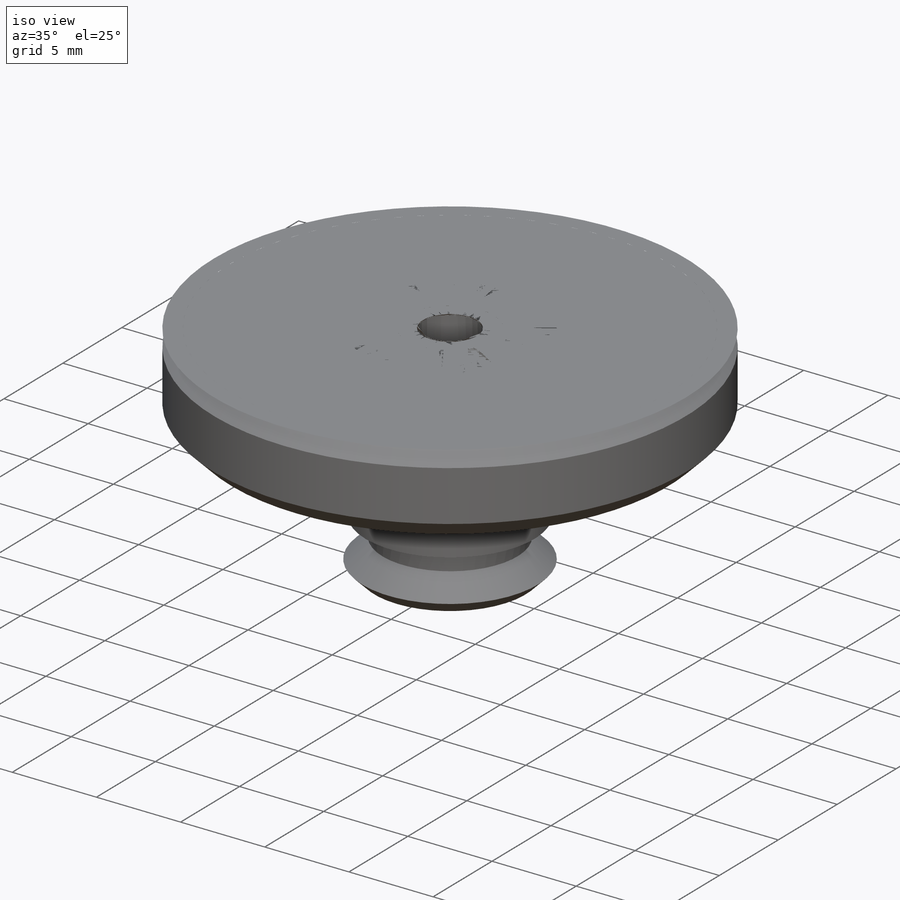
[diagram: iso view]
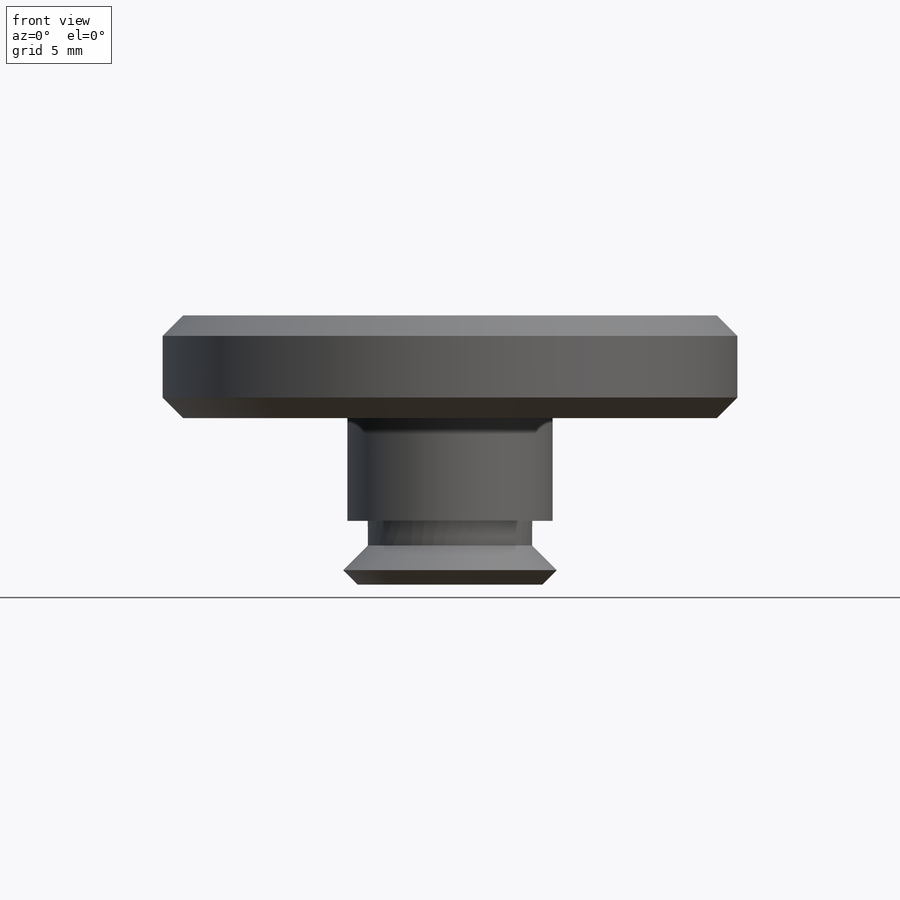
[diagram: front view]
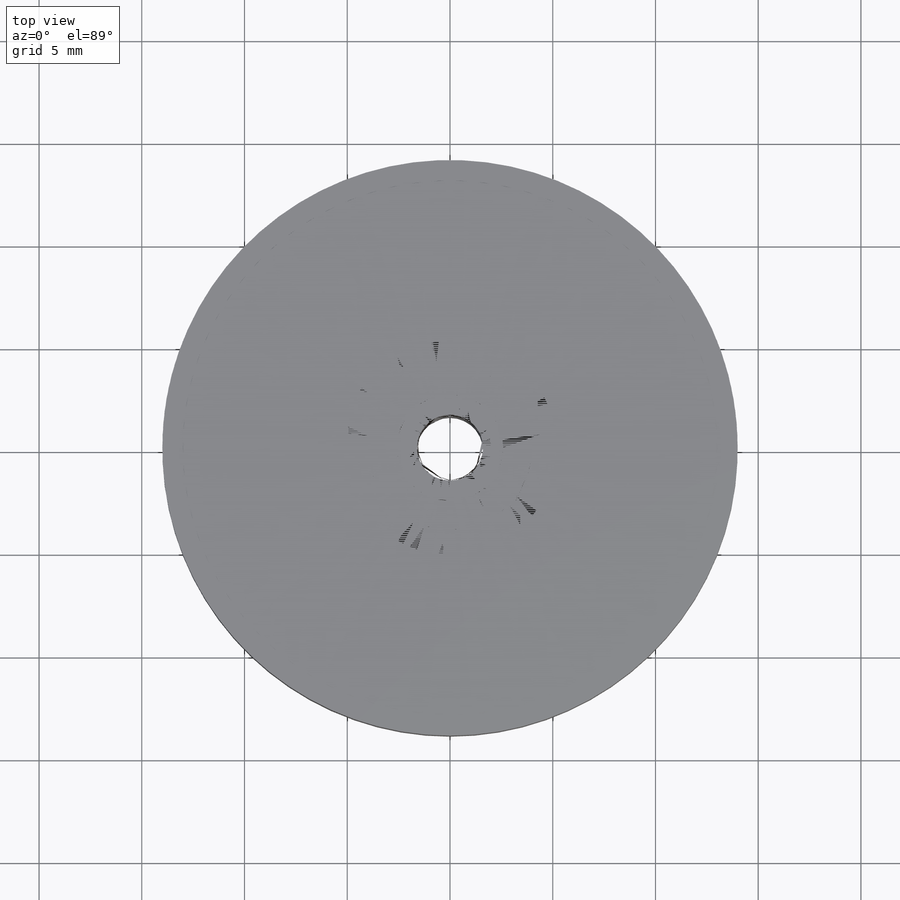
[diagram: top view]
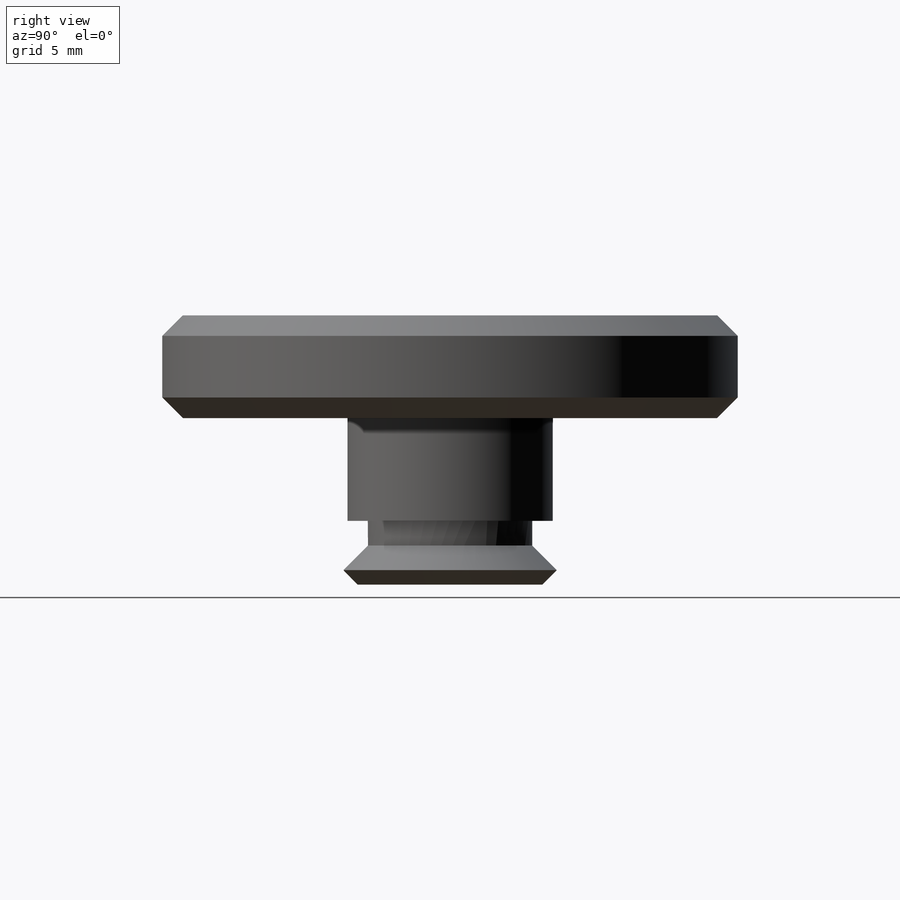
[diagram: right view]
SOLIDWORKS PART (.sldprt)
format: sldprt  version: not decoded by parser v0  size: 548,864 bytes
history: native  units: mm
features: plane x3, sketch x2, chamfer x2, material x1, revolve x1, cut_extrude x1, thread x1 (+9 scaffold rows collapsed)
feature tree (20):
  scaffold x9  (default folders/planes/origin — collapsed)
  material  "Сталь"
  plane  "Спереди"
  plane  "Сверху"
  plane  "Справа"
  sketch  "Эскиз1"  dims[c1.D1=14.0mm c1.D2=5.0mm c1.D3=5.0mm c1.D4=4.0mm c1.D5=1.0mm c1.D6=1.0mm c1.D7=5.0mm c2.D6=~2.79649mm c3.D6=135.0deg c3.D8=1.2mm c3.D9=1.2mm]
  revolve  "Повернуть1"  Angle=360deg
  sketch  "Эскиз2"  dims[D1=3.22mm]
  cut_extrude  "Вырез-Вытянуть1"  [1 undecoded]
  thread  "Условное изображение резьбы1"  Diameter=4mm  [1 undecoded]
  chamfer  "Фаска1"  Distance=0.39mm Angle=45deg
  chamfer  "Фаска2"  Distance=1mm Angle=45deg
decode coverage: 6 of 7 modeling features carry decoded parameters
note: ~ marks probable driven/reference dimensions
note: 2 parameter values undecoded
note: suppression state not decoded; provenance and decode notes live in map.json
